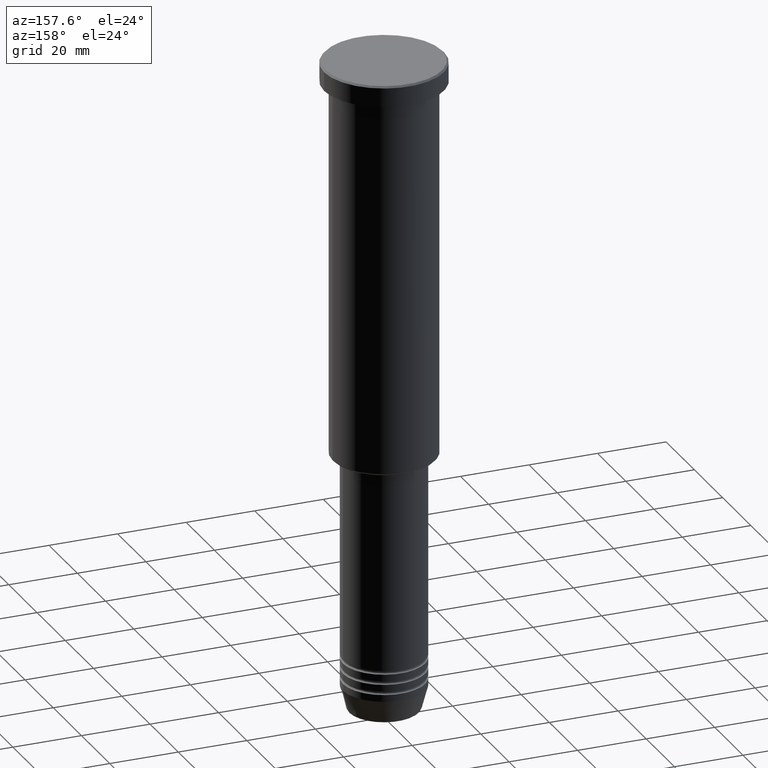
[diagram: clean part render]
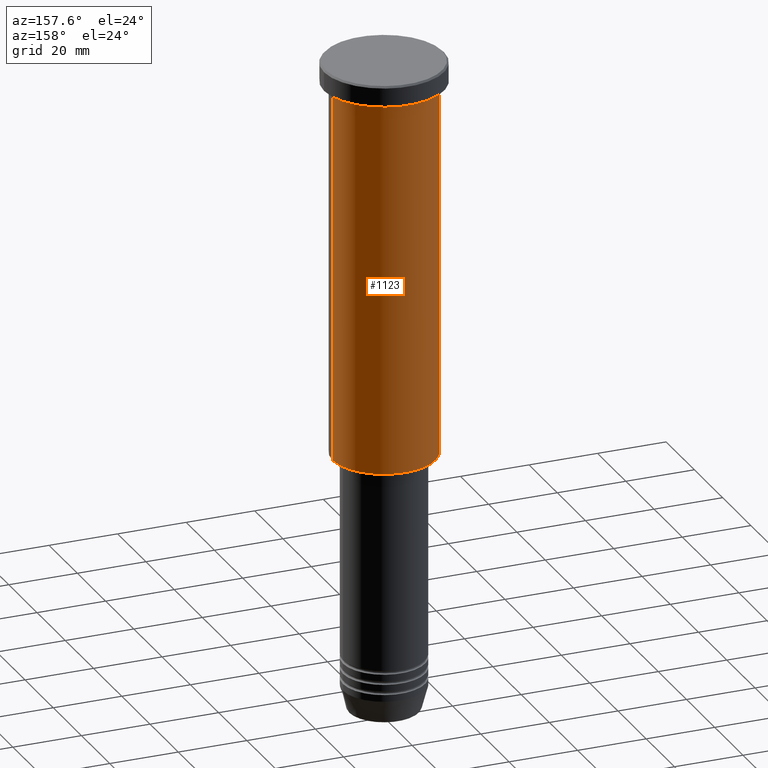
[diagram: same view with one face highlighted and labeled with its STEP entity id]
A machine part, auxiliary view. The second image highlights one B-rep face of the part: STEP entity #1123.
In plain terms, the highlighted cylindrical surface (partial cylindrical patch) has radius 15 mm, axis along (-0, -0, 1).
Its self-contained STEP definition (entity closure, byte-faithful):
#16 = LINE ( 'NONE', #23, #747 ) ;
#23 = CARTESIAN_POINT ( 'NONE',  ( -15.00000000000000000, 1.836970198721029589E-15, 0.000000000000000000 ) ) ;
#83 = VERTEX_POINT ( 'NONE', #194 ) ;
#99 = CARTESIAN_POINT ( 'NONE',  ( 0.000000000000000000, 0.000000000000000000, 0.000000000000000000 ) ) ;
#137 = EDGE_CURVE ( 'NONE', #207, #369, #748, .T. ) ;
#163 = DIRECTION ( 'NONE',  ( -0.000000000000000000, -0.000000000000000000, 1.000000000000000000 ) ) ;
#194 = CARTESIAN_POINT ( 'NONE',  ( -15.00000000000000000, 1.836970198721029589E-15, -115.5000000000000568 ) ) ;
#207 = VERTEX_POINT ( 'NONE', #480 ) ;
#244 = CIRCLE ( 'NONE', #401, 15.00000000000000000 ) ;
#255 = DIRECTION ( 'NONE',  ( 1.000000000000000000, 0.000000000000000000, 0.000000000000000000 ) ) ;
#349 = VECTOR ( 'NONE', #577, 1000.000000000000000 ) ;
#369 = VERTEX_POINT ( 'NONE', #382 ) ;
#370 = DIRECTION ( 'NONE',  ( 1.000000000000000000, 0.000000000000000000, 0.000000000000000000 ) ) ;
#382 = CARTESIAN_POINT ( 'NONE',  ( 15.00000000000000000, 0.000000000000000000, -6.999999999999995559 ) ) ;
#383 = ORIENTED_EDGE ( 'NONE', *, *, #137, .F. ) ;
#401 = AXIS2_PLACEMENT_3D ( 'NONE', #986, #163, #1057 ) ;
#461 = DIRECTION ( 'NONE',  ( -0.000000000000000000, -0.000000000000000000, 1.000000000000000000 ) ) ;
#480 = CARTESIAN_POINT ( 'NONE',  ( 15.00000000000000000, 0.000000000000000000, -115.5000000000000568 ) ) ;
#515 = EDGE_LOOP ( 'NONE', ( #931, #1136, #980, #383 ) ) ;
#554 = AXIS2_PLACEMENT_3D ( 'NONE', #887, #1151, #255 ) ;
#577 = DIRECTION ( 'NONE',  ( -0.000000000000000000, -0.000000000000000000, 1.000000000000000000 ) ) ;
#641 = EDGE_CURVE ( 'NONE', #369, #847, #1085, .T. ) ;
#734 = CARTESIAN_POINT ( 'NONE',  ( 15.00000000000000000, 0.000000000000000000, 0.000000000000000000 ) ) ;
#747 = VECTOR ( 'NONE', #461, 1000.000000000000000 ) ;
#748 = LINE ( 'NONE', #734, #349 ) ;
#754 = CARTESIAN_POINT ( 'NONE',  ( -15.00000000000000000, 1.836970198721029589E-15, -6.999999999999995559 ) ) ;
#847 = VERTEX_POINT ( 'NONE', #754 ) ;
#887 = CARTESIAN_POINT ( 'NONE',  ( 0.000000000000000000, 0.000000000000000000, -6.999999999999995559 ) ) ;
#908 = DIRECTION ( 'NONE',  ( -0.000000000000000000, -0.000000000000000000, 1.000000000000000000 ) ) ;
#913 = CYLINDRICAL_SURFACE ( 'NONE', #936, 15.00000000000000000 ) ;
#931 = ORIENTED_EDGE ( 'NONE', *, *, #1033, .T. ) ;
#936 = AXIS2_PLACEMENT_3D ( 'NONE', #99, #908, #370 ) ;
#980 = ORIENTED_EDGE ( 'NONE', *, *, #641, .F. ) ;
#986 = CARTESIAN_POINT ( 'NONE',  ( 0.000000000000000000, 0.000000000000000000, -115.5000000000000568 ) ) ;
#1012 = FACE_OUTER_BOUND ( 'NONE', #515, .T. ) ;
#1033 = EDGE_CURVE ( 'NONE', #207, #83, #244, .T. ) ;
#1057 = DIRECTION ( 'NONE',  ( -1.000000000000000000, 0.000000000000000000, 0.000000000000000000 ) ) ;
#1085 = CIRCLE ( 'NONE', #554, 15.00000000000000000 ) ;
#1123 = ADVANCED_FACE ( 'NONE', ( #1012 ), #913, .T. ) ;
#1136 = ORIENTED_EDGE ( 'NONE', *, *, #1178, .T. ) ;
#1151 = DIRECTION ( 'NONE',  ( -0.000000000000000000, -0.000000000000000000, 1.000000000000000000 ) ) ;
#1178 = EDGE_CURVE ( 'NONE', #83, #847, #16, .T. ) ;